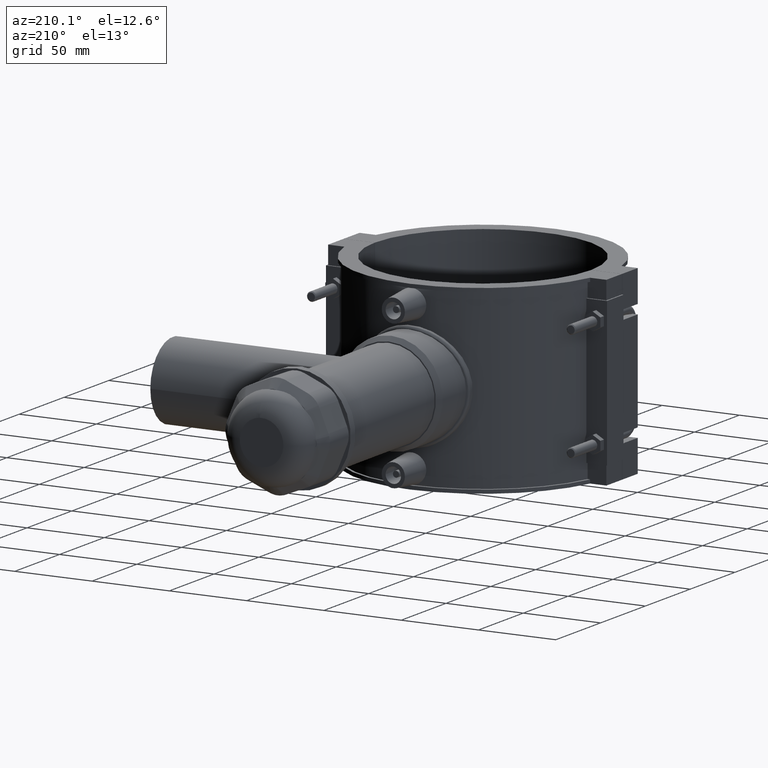
[diagram: clean part render]
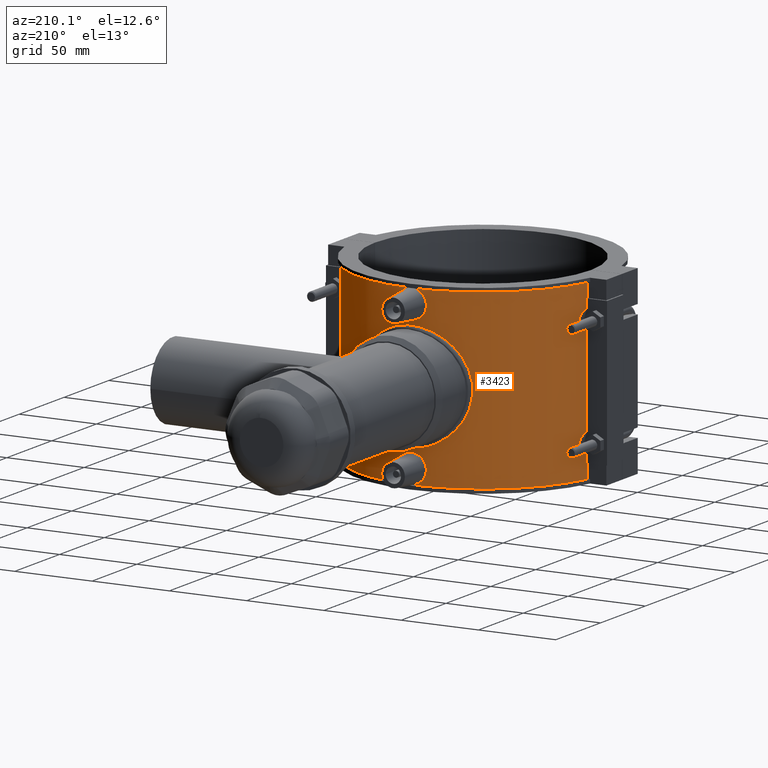
[diagram: same view with one face highlighted and labeled with its STEP entity id]
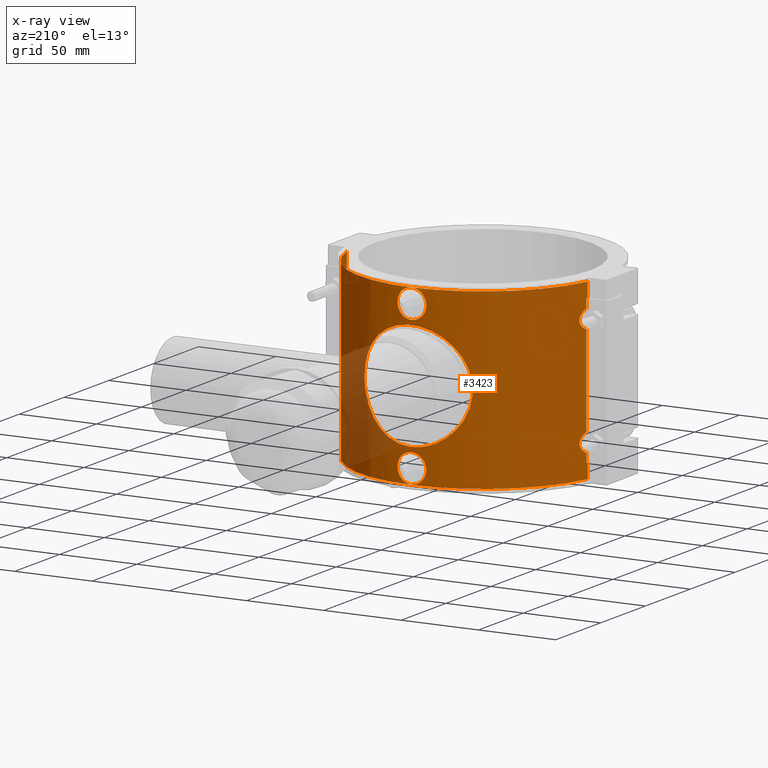
[diagram: x-ray of the same camera — body ghosted, the highlighted face saturated]
A machine part, auxiliary view. The second image highlights one B-rep face of the part: STEP entity #3423.
The next image is the same camera in x-ray: the body ghosted, the highlighted face saturated — about 10% of this face is hidden behind the body in this view.
In plain terms, the highlighted cylindrical surface (partial cylindrical patch) has radius 79.8 mm, axis along (0, 0, 1).
Its self-contained STEP definition (entity closure, byte-faithful):
#113=LINE('',#6130,#400);
#133=LINE('',#6213,#420);
#137=LINE('',#6221,#424);
#138=LINE('',#6225,#425);
#139=LINE('',#6237,#426);
#140=LINE('',#6249,#427);
#141=LINE('',#6252,#428);
#142=LINE('',#6256,#429);
#143=LINE('',#6269,#430);
#144=LINE('',#6282,#431);
#400=VECTOR('',#4144,9.43999999999999);
#420=VECTOR('',#4192,9.43999999999999);
#424=VECTOR('',#4198,9.43999999999999);
#425=VECTOR('',#4201,5.76263824369602);
#426=VECTOR('',#4202,58.725276487392);
#427=VECTOR('',#4203,5.76263824369602);
#428=VECTOR('',#4206,9.43999999999999);
#429=VECTOR('',#4209,5.76263824369603);
#430=VECTOR('',#4210,58.725276487392);
#431=VECTOR('',#4211,5.76263824369602);
#647=FACE_BOUND('',#1132,.T.);
#648=FACE_BOUND('',#1133,.T.);
#649=FACE_BOUND('',#1134,.T.);
#735=B_SPLINE_CURVE_WITH_KNOTS('',3,(#6032,#6033,#6034,#6035,#6036,#6037,
#6038,#6039,#6040,#6041,#6042,#6043,#6044,#6045,#6046,#6047,#6048,#6049,
#6050,#6051,#6052,#6053,#6054,#6055,#6056,#6057,#6058,#6059,#6060,#6061,
#6062,#6063,#6064,#6065,#6066,#6067,#6068,#6069,#6070,#6071,#6072,#6073,
#6074,#6075,#6076,#6077,#6078,#6079,#6080,#6081,#6082,#6083,#6084,#6085,
#6086,#6087,#6088,#6089,#6090,#6091,#6092,#6093,#6094,#6095,#6096,#6097),
 .UNSPECIFIED.,.T.,.F.,(4,2,2,2,2,2,2,2,2,2,2,2,2,2,2,2,2,2,2,2,2,2,2,2,
2,2,2,2,2,2,2,2,4),(0.,0.669733246196648,1.3394664923933,2.00919973858995,
2.67893298478659,3.34765236566998,4.01637174655336,4.68509112743674,5.35381050832012,
6.0225298892035,6.69124927008688,7.35996865097027,8.02868803185365,8.6984212780503,
9.36815452424694,10.0378877704436,10.7076210166402,11.3773542628369,12.0470875090335,
12.7168207552302,13.3865540014268,14.0552733823102,14.7239927631936,15.392712144077,
16.0614315249604,16.7301509058437,17.3988702867271,18.0675896676105,18.7363090484939,
19.4060422946905,20.0757755408872,20.7455087870838,21.4152420332805),
 .UNSPECIFIED.);
#738=B_SPLINE_CURVE_WITH_KNOTS('',3,(#6227,#6228,#6229,#6230,#6231,#6232,
#6233,#6234,#6235),.UNSPECIFIED.,.F.,.F.,(4,1,1,1,1,1,4),(-2.33211188625071,
-2.09713616853243,-1.86216045081415,-1.62718473309587,-1.39220901537758,
-1.1572332976593,-0.687281862222738),.UNSPECIFIED.);
#739=B_SPLINE_CURVE_WITH_KNOTS('',3,(#6239,#6240,#6241,#6242,#6243,#6244,
#6245,#6246,#6247),.UNSPECIFIED.,.F.,.F.,(4,1,1,1,1,1,4),(-2.33211188687385,
-2.0971361692087,-1.86216045154355,-1.62718473387841,-1.39220901621326,
-1.15723329854811,-0.687281863217813),.UNSPECIFIED.);
#740=B_SPLINE_CURVE_WITH_KNOTS('',3,(#6258,#6259,#6260,#6261,#6262,#6263,
#6264,#6265,#6266,#6267),.UNSPECIFIED.,.F.,.F.,(4,1,1,1,1,1,1,4),(-2.33154449380842,
-2.09656877806517,-1.86159306232193,-1.62661734657869,-1.39164163083545,
-1.1566659150922,-0.921690199348961,-0.686714483605718),.UNSPECIFIED.);
#741=B_SPLINE_CURVE_WITH_KNOTS('',3,(#6271,#6272,#6273,#6274,#6275,#6276,
#6277,#6278,#6279,#6280),.UNSPECIFIED.,.F.,.F.,(4,1,1,1,1,1,1,4),(-2.33211188704381,
-2.09713616939315,-1.8621604517425,-1.62718473409184,-1.39220901644118,
-1.15723329879053,-0.922257581139871,-0.687281863489215),.UNSPECIFIED.);
#742=B_SPLINE_CURVE_WITH_KNOTS('',3,(#6285,#6286,#6287,#6288,#6289,#6290,
#6291,#6292,#6293,#6294,#6295,#6296,#6297,#6298,#6299,#6300,#6301,#6302,
#6303,#6304,#6305,#6306,#6307,#6308,#6309,#6310,#6311,#6312,#6313,#6314,
#6315,#6316,#6317,#6318),.UNSPECIFIED.,.T.,.F.,(4,2,2,2,2,2,2,2,2,2,2,2,
2,2,2,2,4),(0.,0.350537332806521,0.701074665613042,1.05119542431548,1.40131618301793,
1.75143694172037,2.10155770042281,2.45209503322933,2.80263236603585,3.15316969884237,
3.50370703164889,3.85382779035133,4.20394854905378,4.55406930775622,4.90419006645866,
5.25472739926518,5.6052647320717),.UNSPECIFIED.);
#743=B_SPLINE_CURVE_WITH_KNOTS('',3,(#6320,#6321,#6322,#6323,#6324,#6325,
#6326,#6327,#6328,#6329,#6330,#6331,#6332,#6333,#6334,#6335,#6336,#6337,
#6338,#6339,#6340,#6341,#6342,#6343,#6344,#6345,#6346,#6347,#6348,#6349,
#6350,#6351,#6352,#6353),.UNSPECIFIED.,.T.,.F.,(4,2,2,2,2,2,2,2,2,2,2,2,
2,2,2,2,4),(0.,0.350537332806521,0.701074665613042,1.05119542431548,1.40131618301793,
1.75143694172037,2.10155770042281,2.45209503322933,2.80263236603585,3.15316969884237,
3.50370703164889,3.85382779035134,4.20394854905378,4.55406930775622,4.90419006645866,
5.25472739926518,5.6052647320717),.UNSPECIFIED.);
#795=CYLINDRICAL_SURFACE('',#3672,79.8);
#907=FACE_OUTER_BOUND('',#1131,.T.);
#1131=EDGE_LOOP('',(#2590,#2591,#2592,#2593,#2594,#2595,#2596,#2597,#2598,
#2599,#2600,#2601,#2602,#2603,#2604,#2605,#2606,#2607,#2608,#2609));
#1132=EDGE_LOOP('',(#2610));
#1133=EDGE_LOOP('',(#2611));
#1134=EDGE_LOOP('',(#2612));
#1338=CIRCLE('',#3651,79.8);
#1346=CIRCLE('',#3665,79.8);
#1350=CIRCLE('',#3673,79.8);
#1351=CIRCLE('',#3674,79.8);
#1352=CIRCLE('',#3675,79.8);
#1353=CIRCLE('',#3676,79.8);
#1506=VERTEX_POINT('',#6031);
#1511=VERTEX_POINT('',#6108);
#1512=VERTEX_POINT('',#6110);
#1519=VERTEX_POINT('',#6129);
#1539=VERTEX_POINT('',#6196);
#1540=VERTEX_POINT('',#6198);
#1544=VERTEX_POINT('',#6212);
#1547=VERTEX_POINT('',#6220);
#1548=VERTEX_POINT('',#6222);
#1549=VERTEX_POINT('',#6224);
#1550=VERTEX_POINT('',#6226);
#1551=VERTEX_POINT('',#6236);
#1552=VERTEX_POINT('',#6238);
#1553=VERTEX_POINT('',#6248);
#1554=VERTEX_POINT('',#6251);
#1555=VERTEX_POINT('',#6253);
#1556=VERTEX_POINT('',#6255);
#1557=VERTEX_POINT('',#6257);
#1558=VERTEX_POINT('',#6268);
#1559=VERTEX_POINT('',#6270);
#1560=VERTEX_POINT('',#6281);
#1561=VERTEX_POINT('',#6284);
#1562=VERTEX_POINT('',#6319);
#1888=EDGE_CURVE('',#1506,#1506,#735,.T.);
#1895=EDGE_CURVE('',#1511,#1512,#1338,.T.);
#1903=EDGE_CURVE('',#1519,#1511,#113,.T.);
#1926=EDGE_CURVE('',#1540,#1539,#1346,.T.);
#1933=EDGE_CURVE('',#1540,#1544,#133,.T.);
#1937=EDGE_CURVE('',#1547,#1512,#137,.T.);
#1938=EDGE_CURVE('',#1547,#1548,#1350,.T.);
#1939=EDGE_CURVE('',#1548,#1549,#138,.T.);
#1940=EDGE_CURVE('',#1550,#1549,#738,.T.);
#1941=EDGE_CURVE('',#1550,#1551,#139,.T.);
#1942=EDGE_CURVE('',#1552,#1551,#739,.T.);
#1943=EDGE_CURVE('',#1552,#1553,#140,.T.);
#1944=EDGE_CURVE('',#1553,#1544,#1351,.T.);
#1945=EDGE_CURVE('',#1539,#1554,#141,.T.);
#1946=EDGE_CURVE('',#1554,#1555,#1352,.T.);
#1947=EDGE_CURVE('',#1555,#1556,#142,.T.);
#1948=EDGE_CURVE('',#1557,#1556,#740,.T.);
#1949=EDGE_CURVE('',#1557,#1558,#143,.T.);
#1950=EDGE_CURVE('',#1559,#1558,#741,.T.);
#1951=EDGE_CURVE('',#1559,#1560,#144,.T.);
#1952=EDGE_CURVE('',#1560,#1519,#1353,.T.);
#1953=EDGE_CURVE('',#1561,#1561,#742,.T.);
#1954=EDGE_CURVE('',#1562,#1562,#743,.T.);
#2590=ORIENTED_EDGE('',*,*,#1895,.T.);
#2591=ORIENTED_EDGE('',*,*,#1937,.F.);
#2592=ORIENTED_EDGE('',*,*,#1938,.T.);
#2593=ORIENTED_EDGE('',*,*,#1939,.T.);
#2594=ORIENTED_EDGE('',*,*,#1940,.F.);
#2595=ORIENTED_EDGE('',*,*,#1941,.T.);
#2596=ORIENTED_EDGE('',*,*,#1942,.F.);
#2597=ORIENTED_EDGE('',*,*,#1943,.T.);
#2598=ORIENTED_EDGE('',*,*,#1944,.T.);
#2599=ORIENTED_EDGE('',*,*,#1933,.F.);
#2600=ORIENTED_EDGE('',*,*,#1926,.T.);
#2601=ORIENTED_EDGE('',*,*,#1945,.T.);
#2602=ORIENTED_EDGE('',*,*,#1946,.T.);
#2603=ORIENTED_EDGE('',*,*,#1947,.T.);
#2604=ORIENTED_EDGE('',*,*,#1948,.F.);
#2605=ORIENTED_EDGE('',*,*,#1949,.T.);
#2606=ORIENTED_EDGE('',*,*,#1950,.F.);
#2607=ORIENTED_EDGE('',*,*,#1951,.T.);
#2608=ORIENTED_EDGE('',*,*,#1952,.T.);
#2609=ORIENTED_EDGE('',*,*,#1903,.T.);
#2610=ORIENTED_EDGE('',*,*,#1888,.T.);
#2611=ORIENTED_EDGE('',*,*,#1953,.T.);
#2612=ORIENTED_EDGE('',*,*,#1954,.T.);
#3423=ADVANCED_FACE('',(#907,#647,#648,#649),#795,.T.);
#3651=AXIS2_PLACEMENT_3D('',#6112,#4126,#4127);
#3665=AXIS2_PLACEMENT_3D('',#6199,#4175,#4176);
#3672=AXIS2_PLACEMENT_3D('',#6219,#4196,#4197);
#3673=AXIS2_PLACEMENT_3D('',#6223,#4199,#4200);
#3674=AXIS2_PLACEMENT_3D('',#6250,#4204,#4205);
#3675=AXIS2_PLACEMENT_3D('',#6254,#4207,#4208);
#3676=AXIS2_PLACEMENT_3D('',#6283,#4212,#4213);
#4126=DIRECTION('center_axis',(0.,0.,1.));
#4127=DIRECTION('ref_axis',(1.,0.,0.));
#4144=DIRECTION('',(0.,0.,-1.));
#4175=DIRECTION('center_axis',(0.,0.,-1.));
#4176=DIRECTION('ref_axis',(1.,0.,0.));
#4192=DIRECTION('',(0.,0.,-1.));
#4196=DIRECTION('center_axis',(0.,0.,1.));
#4197=DIRECTION('ref_axis',(1.,0.,0.));
#4198=DIRECTION('',(0.,0.,-1.));
#4199=DIRECTION('center_axis',(0.,0.,-1.));
#4200=DIRECTION('ref_axis',(1.,0.,0.));
#4201=DIRECTION('',(0.,0.,1.));
#4202=DIRECTION('',(0.,0.,1.));
#4203=DIRECTION('',(0.,0.,1.));
#4204=DIRECTION('center_axis',(0.,0.,1.));
#4205=DIRECTION('ref_axis',(1.,0.,0.));
#4206=DIRECTION('',(0.,0.,-1.));
#4207=DIRECTION('center_axis',(0.,0.,1.));
#4208=DIRECTION('ref_axis',(1.,0.,0.));
#4209=DIRECTION('',(0.,0.,-1.));
#4210=DIRECTION('',(0.,0.,-1.));
#4211=DIRECTION('',(0.,0.,-1.));
#4212=DIRECTION('center_axis',(0.,0.,-1.));
#4213=DIRECTION('ref_axis',(1.,0.,0.));
#6031=CARTESIAN_POINT('',(35.,71.7149914592479,5.55111512312578E-16));
#6032=CARTESIAN_POINT('Ctrl Pts',(35.,71.7149914592479,-1.11022302462516E-15));
#6033=CARTESIAN_POINT('Ctrl Pts',(35.,71.7149914592479,2.23244415398883));
#6034=CARTESIAN_POINT('Ctrl Pts',(34.7830051908458,71.82222266821,4.52941639565479));
#6035=CARTESIAN_POINT('Ctrl Pts',(33.8818788883193,72.251694799161,9.07696792916933));
#6036=CARTESIAN_POINT('Ctrl Pts',(33.1980687000503,72.5733484504278,11.3276663262785));
#6037=CARTESIAN_POINT('Ctrl Pts',(31.4037679157448,73.3676077814427,15.6279027804544));
#6038=CARTESIAN_POINT('Ctrl Pts',(30.2918541195544,73.8398874884586,17.6814379648597));
#6039=CARTESIAN_POINT('Ctrl Pts',(27.7335784593706,74.8383193006624,21.4727338949643));
#6040=CARTESIAN_POINT('Ctrl Pts',(26.2869210261345,75.3634897070117,23.2105536569238));
#6041=CARTESIAN_POINT('Ctrl Pts',(23.2128822124974,76.3663013207753,26.2845924705609));
#6042=CARTESIAN_POINT('Ctrl Pts',(21.4761934759569,76.880673048881,27.7309403731103));
#6043=CARTESIAN_POINT('Ctrl Pts',(17.6843577904499,77.8404025178017,30.2901870246844));
#6044=CARTESIAN_POINT('Ctrl Pts',(15.629144883072,78.284967779767,31.4032851659072));
#6045=CARTESIAN_POINT('Ctrl Pts',(11.3254725646973,79.0224020356501,33.1989485280173));
#6046=CARTESIAN_POINT('Ctrl Pts',(9.07306067637975,79.3153757918893,33.8829429529533));
#6047=CARTESIAN_POINT('Ctrl Pts',(4.5248950802209,79.7042946870848,34.7836107631138));
#6048=CARTESIAN_POINT('Ctrl Pts',(2.22906460294461,79.8,35.));
#6049=CARTESIAN_POINT('Ctrl Pts',(-2.2290646029446,79.8,35.));
#6050=CARTESIAN_POINT('Ctrl Pts',(-4.52489508022089,79.7042946870848,34.7836107631138));
#6051=CARTESIAN_POINT('Ctrl Pts',(-9.07306067637974,79.3153757918893,33.8829429529533));
#6052=CARTESIAN_POINT('Ctrl Pts',(-11.3254725646973,79.0224020356501,33.1989485280173));
#6053=CARTESIAN_POINT('Ctrl Pts',(-15.629144883072,78.284967779767,31.4032851659072));
#6054=CARTESIAN_POINT('Ctrl Pts',(-17.6843577904498,77.8404025178017,30.2901870246844));
#6055=CARTESIAN_POINT('Ctrl Pts',(-21.4761934759569,76.8806730488809,27.7309403731103));
#6056=CARTESIAN_POINT('Ctrl Pts',(-23.2128822124974,76.3663013207753,26.2845924705609));
#6057=CARTESIAN_POINT('Ctrl Pts',(-26.2869210261345,75.3634897070117,23.2105536569238));
#6058=CARTESIAN_POINT('Ctrl Pts',(-27.7335784593705,74.8383193006624,21.4727338949643));
#6059=CARTESIAN_POINT('Ctrl Pts',(-30.2918541195544,73.8398874884586,17.6814379648597));
#6060=CARTESIAN_POINT('Ctrl Pts',(-31.4037679157448,73.3676077814427,15.6279027804544));
#6061=CARTESIAN_POINT('Ctrl Pts',(-33.1980687000503,72.5733484504278,11.3276663262785));
#6062=CARTESIAN_POINT('Ctrl Pts',(-33.8818788883193,72.251694799161,9.07696792916933));
#6063=CARTESIAN_POINT('Ctrl Pts',(-34.7830051908458,71.82222266821,4.52941639565479));
#6064=CARTESIAN_POINT('Ctrl Pts',(-35.,71.7149914592479,2.23244415398883));
#6065=CARTESIAN_POINT('Ctrl Pts',(-35.,71.7149914592479,-2.23244415398883));
#6066=CARTESIAN_POINT('Ctrl Pts',(-34.7830051908458,71.82222266821,-4.52941639565479));
#6067=CARTESIAN_POINT('Ctrl Pts',(-33.8818788883193,72.251694799161,-9.07696792916933));
#6068=CARTESIAN_POINT('Ctrl Pts',(-33.1980687000503,72.5733484504278,-11.3276663262785));
#6069=CARTESIAN_POINT('Ctrl Pts',(-31.4037679157448,73.3676077814427,-15.6279027804544));
#6070=CARTESIAN_POINT('Ctrl Pts',(-30.2918541195544,73.8398874884586,-17.6814379648597));
#6071=CARTESIAN_POINT('Ctrl Pts',(-27.7335784593705,74.8383193006624,-21.4727338949643));
#6072=CARTESIAN_POINT('Ctrl Pts',(-26.2869210261345,75.3634897070117,-23.2105536569238));
#6073=CARTESIAN_POINT('Ctrl Pts',(-23.2128822124974,76.3663013207753,-26.2845924705609));
#6074=CARTESIAN_POINT('Ctrl Pts',(-21.4761934759569,76.8806730488809,-27.7309403731103));
#6075=CARTESIAN_POINT('Ctrl Pts',(-17.6843577904499,77.8404025178017,-30.2901870246844));
#6076=CARTESIAN_POINT('Ctrl Pts',(-15.629144883072,78.284967779767,-31.4032851659072));
#6077=CARTESIAN_POINT('Ctrl Pts',(-11.3254725646973,79.0224020356501,-33.1989485280173));
#6078=CARTESIAN_POINT('Ctrl Pts',(-9.07306067637974,79.3153757918893,-33.8829429529533));
#6079=CARTESIAN_POINT('Ctrl Pts',(-4.5248950802209,79.7042946870848,-34.7836107631138));
#6080=CARTESIAN_POINT('Ctrl Pts',(-2.22906460294461,79.8,-35.));
#6081=CARTESIAN_POINT('Ctrl Pts',(2.2290646029446,79.8,-35.));
#6082=CARTESIAN_POINT('Ctrl Pts',(4.52489508022088,79.7042946870848,-34.7836107631138));
#6083=CARTESIAN_POINT('Ctrl Pts',(9.07306067637972,79.3153757918893,-33.8829429529533));
#6084=CARTESIAN_POINT('Ctrl Pts',(11.3254725646972,79.0224020356501,-33.1989485280173));
#6085=CARTESIAN_POINT('Ctrl Pts',(15.629144883072,78.284967779767,-31.4032851659072));
#6086=CARTESIAN_POINT('Ctrl Pts',(17.6843577904498,77.8404025178017,-30.2901870246845));
#6087=CARTESIAN_POINT('Ctrl Pts',(21.4761934759569,76.8806730488809,-27.7309403731103));
#6088=CARTESIAN_POINT('Ctrl Pts',(23.2128822124974,76.3663013207753,-26.2845924705609));
#6089=CARTESIAN_POINT('Ctrl Pts',(26.2869210261345,75.3634897070117,-23.2105536569238));
#6090=CARTESIAN_POINT('Ctrl Pts',(27.7335784593705,74.8383193006624,-21.4727338949643));
#6091=CARTESIAN_POINT('Ctrl Pts',(30.2918541195544,73.8398874884586,-17.6814379648597));
#6092=CARTESIAN_POINT('Ctrl Pts',(31.4037679157448,73.3676077814427,-15.6279027804544));
#6093=CARTESIAN_POINT('Ctrl Pts',(33.1980687000503,72.5733484504278,-11.3276663262786));
#6094=CARTESIAN_POINT('Ctrl Pts',(33.8818788883193,72.251694799161,-9.07696792916934));
#6095=CARTESIAN_POINT('Ctrl Pts',(34.7830051908458,71.82222266821,-4.5294163956548));
#6096=CARTESIAN_POINT('Ctrl Pts',(35.,71.7149914592479,-2.23244415398883));
#6097=CARTESIAN_POINT('Ctrl Pts',(35.,71.7149914592479,0.));
#6108=CARTESIAN_POINT('',(77.8574980332659,17.5,-56.64));
#6110=CARTESIAN_POINT('',(-77.8574980332659,17.5,-56.64));
#6112=CARTESIAN_POINT('Origin',(0.,0.,-56.64));
#6129=CARTESIAN_POINT('',(77.8574980332659,17.5000000000001,-47.2));
#6130=CARTESIAN_POINT('',(77.8574980332659,17.5,0.));
#6196=CARTESIAN_POINT('',(77.8574980332659,17.5,56.64));
#6198=CARTESIAN_POINT('',(-77.8574980332659,17.5,56.64));
#6199=CARTESIAN_POINT('Origin',(0.,0.,56.64));
#6212=CARTESIAN_POINT('',(-77.8574980332659,17.5000000000001,47.2));
#6213=CARTESIAN_POINT('',(-77.8574980332659,17.5,0.));
#6219=CARTESIAN_POINT('Origin',(0.,0.,0.));
#6220=CARTESIAN_POINT('',(-77.8574980332659,17.5000000000001,-47.2));
#6221=CARTESIAN_POINT('',(-77.8574980332659,17.5,0.));
#6222=CARTESIAN_POINT('',(-77.6259621518471,18.5000000000001,-47.2));
#6223=CARTESIAN_POINT('Origin',(0.,0.,-47.2));
#6224=CARTESIAN_POINT('',(-77.6259621518473,18.4999999999995,-41.437361756304));
#6225=CARTESIAN_POINT('',(-77.6259621518471,18.5000000000001,0.));
#6226=CARTESIAN_POINT('',(-77.6259621518473,18.4999999999995,-29.362638243696));
#6227=CARTESIAN_POINT('Ctrl Pts',(-77.6259621518472,18.4999999999994,-29.3626382436962));
#6228=CARTESIAN_POINT('Ctrl Pts',(-77.448313944096,19.2454115162829,-29.7165274637305));
#6229=CARTESIAN_POINT('Ctrl Pts',(-77.0814280248889,20.6859717126142,-30.5186488295503));
#6230=CARTESIAN_POINT('Ctrl Pts',(-76.5568602683256,22.5399144578751,-32.0950100727626));
#6231=CARTESIAN_POINT('Ctrl Pts',(-76.1672572615697,23.80416504964,-34.1767951738903));
#6232=CARTESIAN_POINT('Ctrl Pts',(-76.167763892222,23.8027483298646,-36.6217168500135));
#6233=CARTESIAN_POINT('Ctrl Pts',(-76.6894251331688,22.1112522554882,-39.4019867298124));
#6234=CARTESIAN_POINT('Ctrl Pts',(-77.2706657363447,19.9908230325664,-40.7295833162352));
#6235=CARTESIAN_POINT('Ctrl Pts',(-77.6259621518472,18.4999999999994,-41.4373617563038));
#6236=CARTESIAN_POINT('',(-77.6259621518473,18.4999999999995,29.362638243696));
#6237=CARTESIAN_POINT('',(-77.6259621518471,18.5000000000001,0.));
#6238=CARTESIAN_POINT('',(-77.6259621518473,18.4999999999995,41.437361756304));
#6239=CARTESIAN_POINT('Ctrl Pts',(-77.6259621518472,18.4999999999994,41.4373617563038));
#6240=CARTESIAN_POINT('Ctrl Pts',(-77.4483139439277,19.2454115169888,41.0834725359344));
#6241=CARTESIAN_POINT('Ctrl Pts',(-77.0814280245316,20.6859717139313,40.2813511694943));
#6242=CARTESIAN_POINT('Ctrl Pts',(-76.5568602682239,22.5399144581854,38.704989926675));
#6243=CARTESIAN_POINT('Ctrl Pts',(-76.1672572615837,23.8041650495879,36.6232048257188));
#6244=CARTESIAN_POINT('Ctrl Pts',(-76.1677638922545,23.8027483297638,34.1782831502552));
#6245=CARTESIAN_POINT('Ctrl Pts',(-76.6894251329895,22.1112522560409,31.3980132708635));
#6246=CARTESIAN_POINT('Ctrl Pts',(-77.2706657360082,19.9908230339781,30.0704166844351));
#6247=CARTESIAN_POINT('Ctrl Pts',(-77.6259621518472,18.4999999999994,29.3626382436962));
#6248=CARTESIAN_POINT('',(-77.6259621518471,18.5000000000001,47.2));
#6249=CARTESIAN_POINT('',(-77.6259621518471,18.5000000000001,0.));
#6250=CARTESIAN_POINT('Origin',(0.,0.,47.2));
#6251=CARTESIAN_POINT('',(77.8574980332659,17.5000000000001,47.2));
#6252=CARTESIAN_POINT('',(77.8574980332659,17.5,0.));
#6253=CARTESIAN_POINT('',(77.6259621518471,18.5000000000001,47.2));
#6254=CARTESIAN_POINT('Origin',(0.,0.,47.2));
#6255=CARTESIAN_POINT('',(77.6259621518473,18.4999999999995,41.437361756304));
#6256=CARTESIAN_POINT('',(77.6259621518471,18.5000000000001,0.));
#6257=CARTESIAN_POINT('',(77.6259621518473,18.4999999999995,29.362638243696));
#6258=CARTESIAN_POINT('Ctrl Pts',(77.6259621518472,18.4999999999994,29.3626382436962));
#6259=CARTESIAN_POINT('Ctrl Pts',(77.4483139308053,19.2454115720506,29.7165274902066));
#6260=CARTESIAN_POINT('Ctrl Pts',(77.0826990904155,20.6825684666488,30.5185220622355));
#6261=CARTESIAN_POINT('Ctrl Pts',(76.5584605270656,22.5356066856899,32.0933619879956));
#6262=CARTESIAN_POINT('Ctrl Pts',(76.1692290926899,23.7989458418322,34.1800096696572));
#6263=CARTESIAN_POINT('Ctrl Pts',(76.1673892732004,23.8038407433299,36.6236641570297));
#6264=CARTESIAN_POINT('Ctrl Pts',(76.5571924728078,22.5390548296498,38.7054377322324));
#6265=CARTESIAN_POINT('Ctrl Pts',(77.0815167724474,20.6857470757461,40.2815615389));
#6266=CARTESIAN_POINT('Ctrl Pts',(77.4483139308053,19.2454115720506,41.0834725097934));
#6267=CARTESIAN_POINT('Ctrl Pts',(77.6259621518472,18.4999999999994,41.4373617563038));
#6268=CARTESIAN_POINT('',(77.6259621518473,18.4999999999995,-29.362638243696));
#6269=CARTESIAN_POINT('',(77.6259621518471,18.5000000000001,0.));
#6270=CARTESIAN_POINT('',(77.6259621518473,18.4999999999995,-41.437361756304));
#6271=CARTESIAN_POINT('Ctrl Pts',(77.6259621518472,18.4999999999994,-41.4373617563038));
#6272=CARTESIAN_POINT('Ctrl Pts',(77.4483139438819,19.2454115171813,-41.083472535843));
#6273=CARTESIAN_POINT('Ctrl Pts',(77.0826721580301,20.6826387435423,-40.2814513633585));
#6274=CARTESIAN_POINT('Ctrl Pts',(76.5584189497186,22.5357160039227,-38.7066224625337));
#6275=CARTESIAN_POINT('Ctrl Pts',(76.1691475610627,23.7991582127452,-36.6198974826073));
#6276=CARTESIAN_POINT('Ctrl Pts',(76.1672996533528,23.8040774658046,-34.1763355847774));
#6277=CARTESIAN_POINT('Ctrl Pts',(76.5569229734284,22.5397546268709,-32.0941897848301));
#6278=CARTESIAN_POINT('Ctrl Pts',(77.0818624198038,20.6848345362402,-30.5184175343301));
#6279=CARTESIAN_POINT('Ctrl Pts',(77.4483139438819,19.2454115171813,-29.7165274641571));
#6280=CARTESIAN_POINT('Ctrl Pts',(77.6259621518472,18.4999999999994,-29.3626382436962));
#6281=CARTESIAN_POINT('',(77.6259621518471,18.5000000000001,-47.2));
#6282=CARTESIAN_POINT('',(77.6259621518471,18.5000000000001,0.));
#6283=CARTESIAN_POINT('Origin',(0.,0.,-47.2));
#6284=CARTESIAN_POINT('',(9.31499881409953,79.2544686253925,-47.2));
#6285=CARTESIAN_POINT('Ctrl Pts',(9.31499881409953,79.2544686253925,-47.2));
#6286=CARTESIAN_POINT('Ctrl Pts',(9.31499881409953,79.2544686253925,-46.0315422239783));
#6287=CARTESIAN_POINT('Ctrl Pts',(9.07927705901611,79.2832740529761,-44.7866598084205));
#6288=CARTESIAN_POINT('Ctrl Pts',(8.12401078667296,79.3868456523369,-42.5000799802729));
#6289=CARTESIAN_POINT('Ctrl Pts',(7.40456259486849,79.4600721276288,-41.4582728460423));
#6290=CARTESIAN_POINT('Ctrl Pts',(5.74914170471667,79.5969618701621,-39.8164661855734));
#6291=CARTESIAN_POINT('Ctrl Pts',(4.7028960366599,79.6695522189689,-39.1061335180734));
#6292=CARTESIAN_POINT('Ctrl Pts',(2.41189717008598,79.7717840700412,-38.1642510778672));
#6293=CARTESIAN_POINT('Ctrl Pts',(1.16706919567481,79.8,-37.9327289967763));
#6294=CARTESIAN_POINT('Ctrl Pts',(-1.16706919567481,79.8,-37.9327289967763));
#6295=CARTESIAN_POINT('Ctrl Pts',(-2.41189717008597,79.7717840700413,-38.1642510778672));
#6296=CARTESIAN_POINT('Ctrl Pts',(-4.70289603665989,79.6695522189689,-39.1061335180735));
#6297=CARTESIAN_POINT('Ctrl Pts',(-5.74914170471667,79.5969618701621,-39.8164661855734));
#6298=CARTESIAN_POINT('Ctrl Pts',(-7.40456259486848,79.4600721276288,-41.4582728460423));
#6299=CARTESIAN_POINT('Ctrl Pts',(-8.12401078667296,79.3868456523369,-42.5000799802729));
#6300=CARTESIAN_POINT('Ctrl Pts',(-9.07927705901611,79.2832740529761,-44.7866598084205));
#6301=CARTESIAN_POINT('Ctrl Pts',(-9.31499881409953,79.2544686253925,-46.0315422239783));
#6302=CARTESIAN_POINT('Ctrl Pts',(-9.31499881409953,79.2544686253925,-48.3684577760217));
#6303=CARTESIAN_POINT('Ctrl Pts',(-9.07927705901611,79.2832740529761,-49.6133401915795));
#6304=CARTESIAN_POINT('Ctrl Pts',(-8.12401078667297,79.3868456523369,-51.8999200197271));
#6305=CARTESIAN_POINT('Ctrl Pts',(-7.40456259486849,79.4600721276288,-52.9417271539577));
#6306=CARTESIAN_POINT('Ctrl Pts',(-5.74914170471667,79.5969618701621,-54.5835338144267));
#6307=CARTESIAN_POINT('Ctrl Pts',(-4.7028960366599,79.6695522189689,-55.2938664819266));
#6308=CARTESIAN_POINT('Ctrl Pts',(-2.41189717008598,79.7717840700413,-56.2357489221328));
#6309=CARTESIAN_POINT('Ctrl Pts',(-1.16706919567481,79.8,-56.4672710032237));
#6310=CARTESIAN_POINT('Ctrl Pts',(1.1670691956748,79.8,-56.4672710032237));
#6311=CARTESIAN_POINT('Ctrl Pts',(2.41189717008597,79.7717840700412,-56.2357489221328));
#6312=CARTESIAN_POINT('Ctrl Pts',(4.70289603665989,79.6695522189689,-55.2938664819266));
#6313=CARTESIAN_POINT('Ctrl Pts',(5.74914170471666,79.5969618701621,-54.5835338144267));
#6314=CARTESIAN_POINT('Ctrl Pts',(7.40456259486848,79.4600721276288,-52.9417271539577));
#6315=CARTESIAN_POINT('Ctrl Pts',(8.12401078667296,79.3868456523369,-51.8999200197271));
#6316=CARTESIAN_POINT('Ctrl Pts',(9.07927705901611,79.2832740529761,-49.6133401915795));
#6317=CARTESIAN_POINT('Ctrl Pts',(9.31499881409953,79.2544686253925,-48.3684577760217));
#6318=CARTESIAN_POINT('Ctrl Pts',(9.31499881409953,79.2544686253925,-47.2));
#6319=CARTESIAN_POINT('',(9.31499881409953,79.2544686253925,47.2));
#6320=CARTESIAN_POINT('Ctrl Pts',(-9.31499881409953,79.2544686253925,47.2));
#6321=CARTESIAN_POINT('Ctrl Pts',(-9.31499881409953,79.2544686253925,46.0315422239783));
#6322=CARTESIAN_POINT('Ctrl Pts',(-9.07927705901611,79.2832740529761,44.7866598084205));
#6323=CARTESIAN_POINT('Ctrl Pts',(-8.12401078667296,79.3868456523369,42.5000799802729));
#6324=CARTESIAN_POINT('Ctrl Pts',(-7.40456259486849,79.4600721276288,41.4582728460423));
#6325=CARTESIAN_POINT('Ctrl Pts',(-5.74914170471667,79.5969618701621,39.8164661855734));
#6326=CARTESIAN_POINT('Ctrl Pts',(-4.7028960366599,79.6695522189689,39.1061335180734));
#6327=CARTESIAN_POINT('Ctrl Pts',(-2.41189717008598,79.7717840700412,38.1642510778672));
#6328=CARTESIAN_POINT('Ctrl Pts',(-1.16706919567481,79.8,37.9327289967764));
#6329=CARTESIAN_POINT('Ctrl Pts',(1.16706919567481,79.8,37.9327289967763));
#6330=CARTESIAN_POINT('Ctrl Pts',(2.41189717008597,79.7717840700413,38.1642510778672));
#6331=CARTESIAN_POINT('Ctrl Pts',(4.70289603665989,79.6695522189689,39.1061335180735));
#6332=CARTESIAN_POINT('Ctrl Pts',(5.74914170471667,79.5969618701621,39.8164661855734));
#6333=CARTESIAN_POINT('Ctrl Pts',(7.40456259486849,79.4600721276288,41.4582728460423));
#6334=CARTESIAN_POINT('Ctrl Pts',(8.12401078667296,79.3868456523369,42.5000799802729));
#6335=CARTESIAN_POINT('Ctrl Pts',(9.07927705901611,79.2832740529761,44.7866598084205));
#6336=CARTESIAN_POINT('Ctrl Pts',(9.31499881409953,79.2544686253925,46.0315422239783));
#6337=CARTESIAN_POINT('Ctrl Pts',(9.31499881409953,79.2544686253925,48.3684577760217));
#6338=CARTESIAN_POINT('Ctrl Pts',(9.07927705901611,79.2832740529761,49.6133401915795));
#6339=CARTESIAN_POINT('Ctrl Pts',(8.12401078667296,79.3868456523369,51.8999200197271));
#6340=CARTESIAN_POINT('Ctrl Pts',(7.40456259486848,79.4600721276288,52.9417271539577));
#6341=CARTESIAN_POINT('Ctrl Pts',(5.74914170471666,79.5969618701621,54.5835338144267));
#6342=CARTESIAN_POINT('Ctrl Pts',(4.70289603665989,79.6695522189689,55.2938664819266));
#6343=CARTESIAN_POINT('Ctrl Pts',(2.41189717008597,79.7717840700413,56.2357489221328));
#6344=CARTESIAN_POINT('Ctrl Pts',(1.16706919567481,79.8,56.4672710032237));
#6345=CARTESIAN_POINT('Ctrl Pts',(-1.16706919567481,79.8,56.4672710032237));
#6346=CARTESIAN_POINT('Ctrl Pts',(-2.41189717008598,79.7717840700413,56.2357489221328));
#6347=CARTESIAN_POINT('Ctrl Pts',(-4.7028960366599,79.6695522189689,55.2938664819266));
#6348=CARTESIAN_POINT('Ctrl Pts',(-5.74914170471667,79.5969618701621,54.5835338144267));
#6349=CARTESIAN_POINT('Ctrl Pts',(-7.40456259486849,79.4600721276288,52.9417271539577));
#6350=CARTESIAN_POINT('Ctrl Pts',(-8.12401078667296,79.3868456523369,51.8999200197271));
#6351=CARTESIAN_POINT('Ctrl Pts',(-9.07927705901611,79.2832740529761,49.6133401915795));
#6352=CARTESIAN_POINT('Ctrl Pts',(-9.31499881409953,79.2544686253925,48.3684577760217));
#6353=CARTESIAN_POINT('Ctrl Pts',(-9.31499881409953,79.2544686253925,47.2));